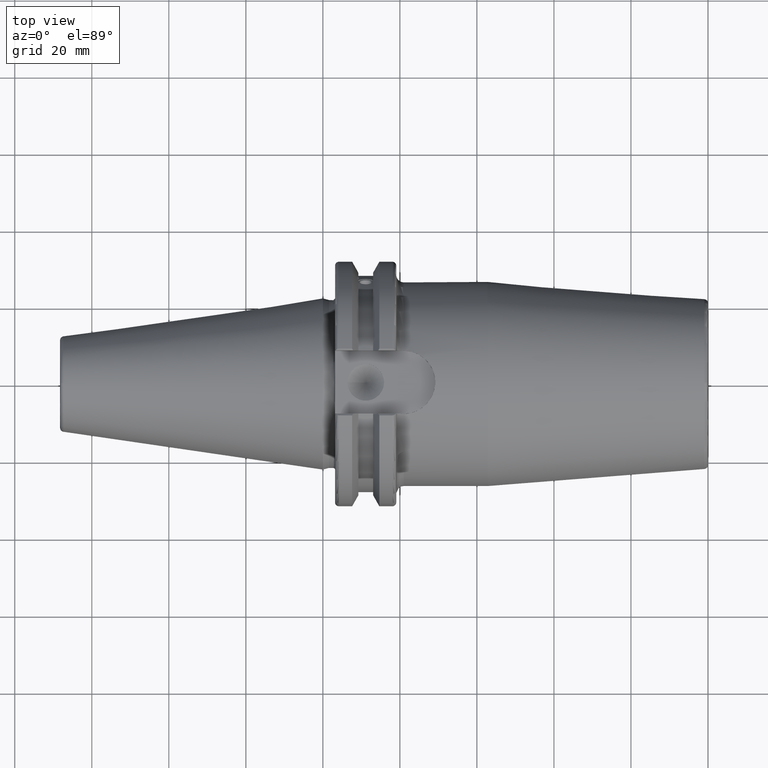
[diagram: clean part render]
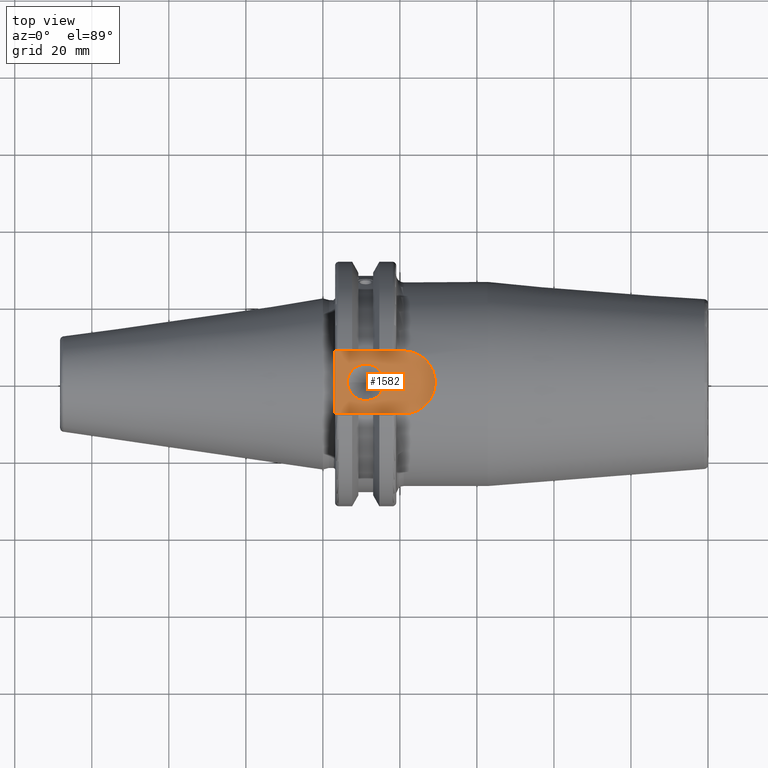
[diagram: same view with one face highlighted and labeled with its STEP entity id]
A machine part, top view. The second image highlights one B-rep face of the part: STEP entity #1582.
In plain terms, the highlighted planar face has unit normal (0, 0, 1).
Its self-contained STEP definition (entity closure, byte-faithful):
#62=FACE_BOUND('',#301,.T.);
#95=PLANE('',#1783);
#200=FACE_OUTER_BOUND('',#300,.T.);
#300=EDGE_LOOP('',(#1440,#1441,#1442,#1443));
#301=EDGE_LOOP('',(#1444));
#309=CIRCLE('',#1613,8.18999999999999);
#376=CIRCLE('',#1771,4.7625);
#437=LINE('',#2845,#523);
#443=LINE('',#2940,#529);
#461=LINE('',#3067,#547);
#523=VECTOR('',#2083,10.);
#529=VECTOR('',#2107,10.);
#547=VECTOR('',#2167,10.);
#601=VERTEX_POINT('',#2251);
#602=VERTEX_POINT('',#2253);
#708=VERTEX_POINT('',#2830);
#715=VERTEX_POINT('',#2843);
#754=VERTEX_POINT('',#3090);
#759=EDGE_CURVE('',#602,#601,#309,.T.);
#914=EDGE_CURVE('',#715,#708,#437,.T.);
#934=EDGE_CURVE('',#715,#602,#443,.T.);
#973=EDGE_CURVE('',#601,#708,#461,.T.);
#982=EDGE_CURVE('',#754,#754,#376,.T.);
#1440=ORIENTED_EDGE('',*,*,#914,.F.);
#1441=ORIENTED_EDGE('',*,*,#934,.T.);
#1442=ORIENTED_EDGE('',*,*,#759,.T.);
#1443=ORIENTED_EDGE('',*,*,#973,.T.);
#1444=ORIENTED_EDGE('',*,*,#982,.T.);
#1582=ADVANCED_FACE('',(#200,#62),#95,.T.);
#1613=AXIS2_PLACEMENT_3D('',#2254,#1798,#1799);
#1771=AXIS2_PLACEMENT_3D('',#3091,#2195,#2196);
#1783=AXIS2_PLACEMENT_3D('',#3104,#2220,#2221);
#1798=DIRECTION('center_axis',(0.,0.,1.));
#1799=DIRECTION('ref_axis',(1.08446693492079E-15,-1.,0.));
#2083=DIRECTION('',(0.,1.,0.));
#2107=DIRECTION('',(1.,-4.98696473722698E-16,0.));
#2167=DIRECTION('',(-1.,-1.24674118430674E-16,0.));
#2195=DIRECTION('center_axis',(0.,0.,-1.));
#2196=DIRECTION('ref_axis',(1.,0.,0.));
#2220=DIRECTION('center_axis',(0.,0.,1.));
#2221=DIRECTION('ref_axis',(1.,0.,0.));
#2251=CARTESIAN_POINT('',(20.985,8.18999999999999,25.));
#2253=CARTESIAN_POINT('',(20.985,-8.19000000000002,25.));
#2254=CARTESIAN_POINT('Origin',(20.985,4.79036735726104E-15,25.));
#2830=CARTESIAN_POINT('',(3.175,8.18999999999999,25.));
#2843=CARTESIAN_POINT('',(3.175,-8.19000000000001,25.));
#2845=CARTESIAN_POINT('',(3.175,15.875,25.));
#2940=CARTESIAN_POINT('',(3.175,-8.19000000000001,25.));
#3067=CARTESIAN_POINT('',(20.985,8.18999999999999,25.));
#3090=CARTESIAN_POINT('',(6.3716,-5.83238038093927E-16,25.));
#3091=CARTESIAN_POINT('Origin',(11.1341,0.,25.));
#3104=CARTESIAN_POINT('Origin',(15.7075,0.,25.));